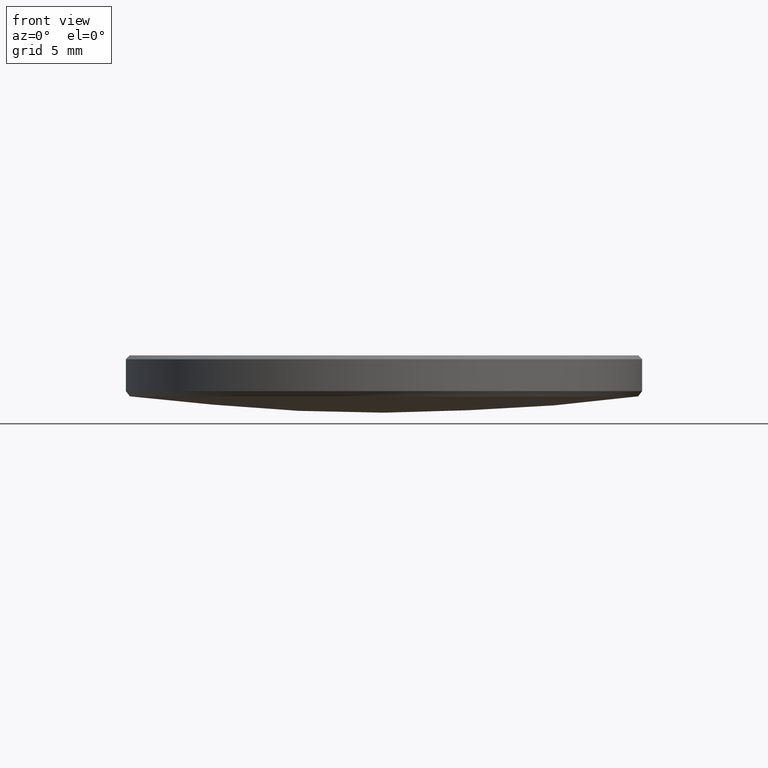
[diagram: clean part render]
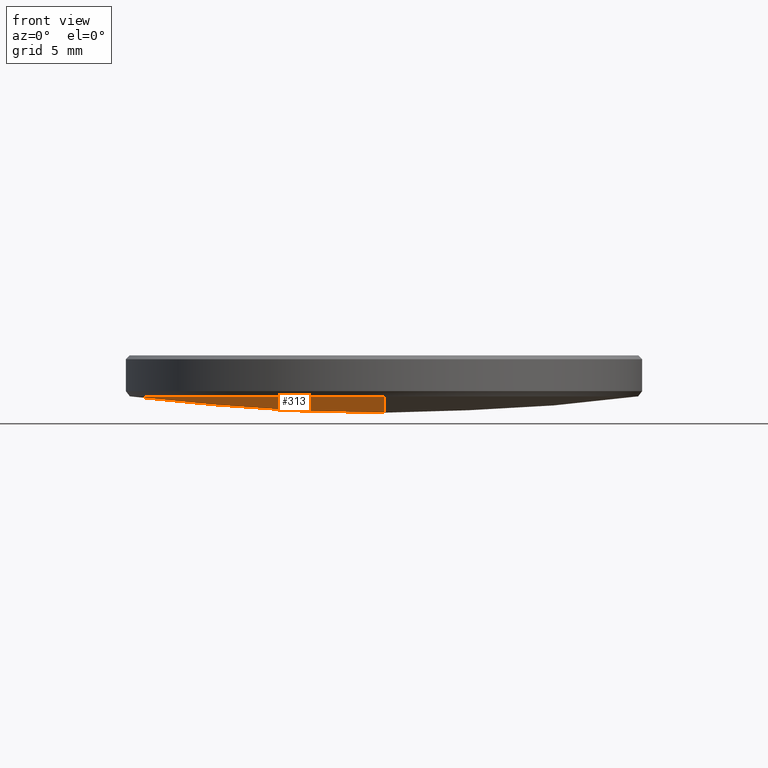
[diagram: same view with one face highlighted and labeled with its STEP entity id]
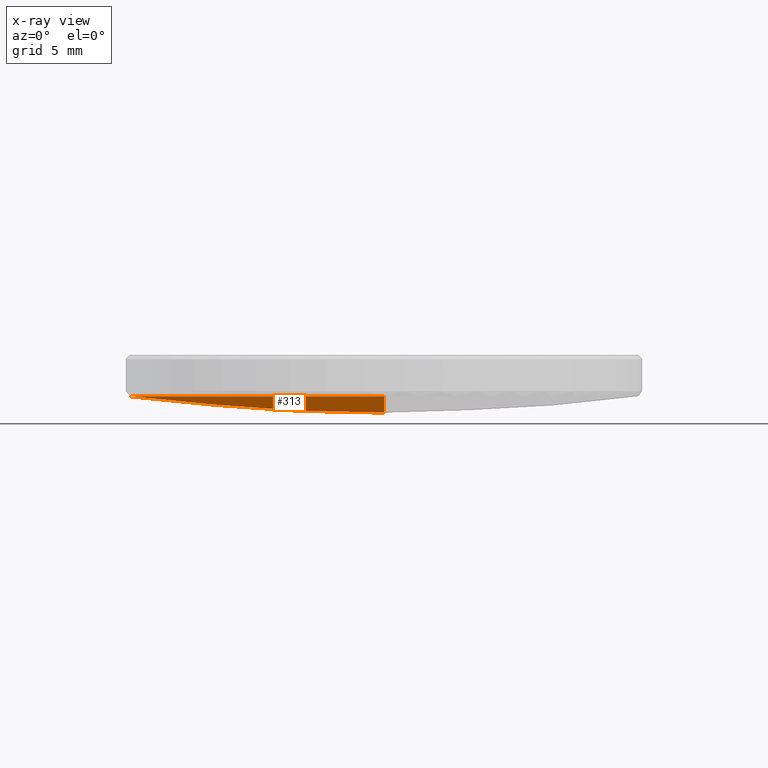
[diagram: x-ray of the same camera — body ghosted, the highlighted face saturated]
A machine part, front view. The second image highlights one B-rep face of the part: STEP entity #313.
The next image is the same camera in x-ray: the body ghosted, the highlighted face saturated — about 0% of this face is hidden behind the body in this view.
In plain terms, the highlighted spherical surface has radius 97.61 mm.
Its self-contained STEP definition (entity closure, byte-faithful):
#27 = CIRCLE ( 'NONE', #215, 12.50187621270549165 ) ;
#40 = CARTESIAN_POINT ( 'NONE',  ( -12.50187621270549165, 1.543169851819880035E-15, 3.974207420987641015 ) ) ;
#46 = AXIS2_PLACEMENT_3D ( 'NONE', #128, #63, #266 ) ;
#63 = DIRECTION ( 'NONE',  ( -1.000000000000000000, 1.224646799147353207E-16, 0.000000000000000000 ) ) ;
#70 = CARTESIAN_POINT ( 'NONE',  ( 0.000000000000000000, 0.000000000000000000, 100.7802774329563533 ) ) ;
#82 = EDGE_LOOP ( 'NONE', ( #262, #178, #156, #214 ) ) ;
#105 = VERTEX_POINT ( 'NONE', #311 ) ;
#120 = DIRECTION ( 'NONE',  ( 1.000000000000000000, 0.000000000000000000, 0.000000000000000000 ) ) ;
#128 = CARTESIAN_POINT ( 'NONE',  ( 0.000000000000000000, 0.000000000000000000, 100.7802774329563533 ) ) ;
#139 = CARTESIAN_POINT ( 'NONE',  ( 0.000000000000000000, 0.000000000000000000, 100.7802774329563533 ) ) ;
#142 = DIRECTION ( 'NONE',  ( -1.000000000000000000, 0.000000000000000000, 0.000000000000000000 ) ) ;
#144 = CARTESIAN_POINT ( 'NONE',  ( 0.000000000000000000, 0.000000000000000000, 3.974207420987641015 ) ) ;
#147 = EDGE_CURVE ( 'NONE', #105, #235, #188, .T. ) ;
#152 = VERTEX_POINT ( 'NONE', #40 ) ;
#156 = ORIENTED_EDGE ( 'NONE', *, *, #192, .T. ) ;
#168 = AXIS2_PLACEMENT_3D ( 'NONE', #139, #246, #326 ) ;
#178 = ORIENTED_EDGE ( 'NONE', *, *, #147, .T. ) ;
#184 = CARTESIAN_POINT ( 'NONE',  ( 0.000000000000000000, 0.000000000000000000, 3.974207420987641015 ) ) ;
#188 = CIRCLE ( 'NONE', #46, 97.60999999999999943 ) ;
#192 = EDGE_CURVE ( 'NONE', #235, #152, #300, .T. ) ;
#199 = DIRECTION ( 'NONE',  ( 0.000000000000000000, 1.000000000000000000, 0.000000000000000000 ) ) ;
#214 = ORIENTED_EDGE ( 'NONE', *, *, #288, .T. ) ;
#215 = AXIS2_PLACEMENT_3D ( 'NONE', #144, #227, #120 ) ;
#218 = DIRECTION ( 'NONE',  ( 1.000000000000000000, 0.000000000000000000, 0.000000000000000000 ) ) ;
#227 = DIRECTION ( 'NONE',  ( 0.000000000000000000, 0.000000000000000000, -1.000000000000000000 ) ) ;
#235 = VERTEX_POINT ( 'NONE', #325 ) ;
#236 = VERTEX_POINT ( 'NONE', #299 ) ;
#240 = EDGE_CURVE ( 'NONE', #105, #236, #318, .T. ) ;
#246 = DIRECTION ( 'NONE',  ( 1.000000000000000000, -0.000000000000000000, 0.000000000000000000 ) ) ;
#253 = AXIS2_PLACEMENT_3D ( 'NONE', #70, #142, #199 ) ;
#262 = ORIENTED_EDGE ( 'NONE', *, *, #240, .F. ) ;
#266 = DIRECTION ( 'NONE',  ( -1.224646799147353207E-16, -1.000000000000000000, 0.000000000000000000 ) ) ;
#269 = DIRECTION ( 'NONE',  ( 0.000000000000000000, 0.000000000000000000, -1.000000000000000000 ) ) ;
#281 = FACE_OUTER_BOUND ( 'NONE', #82, .T. ) ;
#288 = EDGE_CURVE ( 'NONE', #152, #236, #27, .T. ) ;
#299 = CARTESIAN_POINT ( 'NONE',  ( 0.000000000000000000, 12.50187621270551297, 3.974207420987641015 ) ) ;
#300 = CIRCLE ( 'NONE', #324, 12.50187621270549165 ) ;
#311 = CARTESIAN_POINT ( 'NONE',  ( 0.000000000000000000, 5.976888703238657615E-15, 3.170277432956350339 ) ) ;
#313 = ADVANCED_FACE ( 'NONE', ( #281 ), #332, .T. ) ;
#318 = CIRCLE ( 'NONE', #168, 97.60999999999999943 ) ;
#324 = AXIS2_PLACEMENT_3D ( 'NONE', #184, #269, #218 ) ;
#325 = CARTESIAN_POINT ( 'NONE',  ( -1.531038268722624004E-15, -12.50187621270551297, 3.974207420987641015 ) ) ;
#326 = DIRECTION ( 'NONE',  ( 0.000000000000000000, 0.000000000000000000, -1.000000000000000000 ) ) ;
#332 = SPHERICAL_SURFACE ( 'NONE', #253, 97.60999999999999943 ) ;